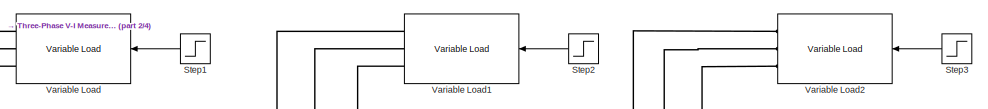
[diagram: root canvas - part 1/4, top center region]
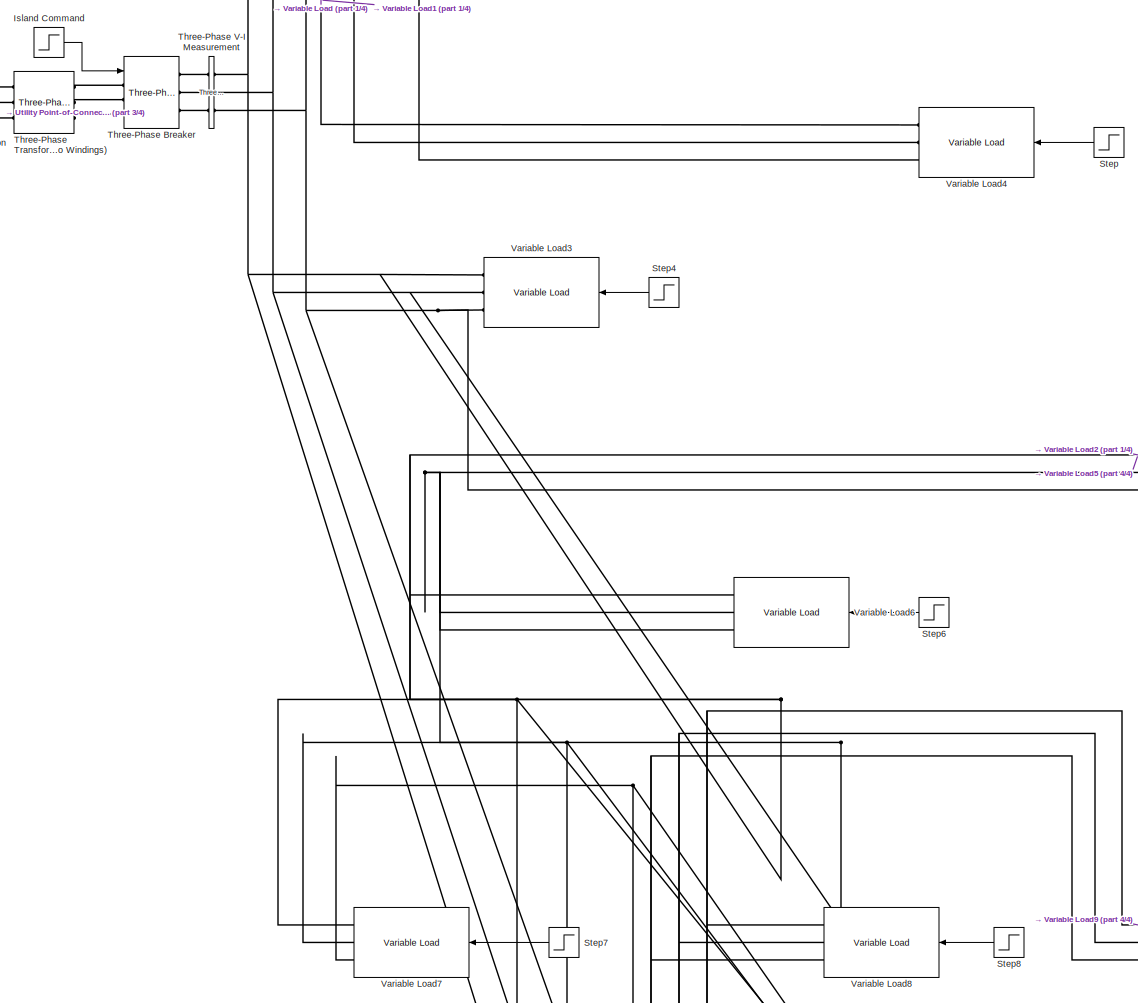
[diagram: root canvas - part 2/4, central region]
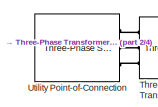
[diagram: root canvas - part 3/4, top left region]
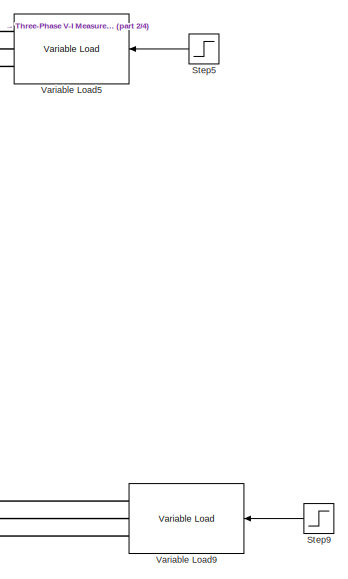
[diagram: root canvas - part 4/4, middle right region]
MODEL slx_3133c8d9baa0
KIND model
CONFIG AbsTol = auto
CONFIG EnableMultiTasking = off
CONFIG FixedStep = auto
CONFIG MaxStep = auto
CONFIG MinStep = auto
CONFIG RelTol = 1e-3
CONFIG SampleTimeConstraint = Unconstrained
CONFIG Solver = VariableStepAuto
CONFIG SolverName = VariableStepAuto
CONFIG StartTime = 0.0
CONFIG StopTime = 10.0
BLOCK [Step] Island Command
  After = 0
  Before = 1
  NameLocation = top
  SampleTime = 0
  Time = 15
BLOCK [Step] Step
  NameLocation = top
  SampleTime = 0
BLOCK [Step] Step1
  NameLocation = top
  SampleTime = 0
BLOCK [Step] Step2
  NameLocation = top
  SampleTime = 0
BLOCK [Step] Step3
  NameLocation = top
  SampleTime = 0
BLOCK [Step] Step4
  NameLocation = top
  SampleTime = 0
BLOCK [Step] Step5
  NameLocation = top
  SampleTime = 0
BLOCK [Step] Step6
  NameLocation = top
  SampleTime = 0
BLOCK [Step] Step7
  NameLocation = top
  SampleTime = 0
BLOCK [Step] Step8
  NameLocation = top
  SampleTime = 0
BLOCK [Step] Step9
  NameLocation = top
  SampleTime = 0
BLOCK [Reference] Three-Phase Breaker  REF=powerlib/Elements/Three-Phase Breaker
  Ports = [1, 0, 0, 0, 0, 3, 3]
  SourceBlock = powerlib/Elements/Three-Phase Breaker
  SourceProductBaseCode = PS
  SourceType = Three-Phase Breaker
BLOCK [Reference] Three-Phase Transformer (Two Windings)  REF=powerlib/Elements/Three-Phase
Transformer
(Two Windings)
  Ports = [0, 0, 0, 0, 0, 3, 3]
  SourceBlock = powerlib/Elements/Three-Phase\nTransformer\n(Two Windings)
  SourceProductBaseCode = PS
  SourceType = Three-Phase Transformer (Two Windings)
BLOCK [Reference] Three-Phase V-I Measurement  REF=powerlib/Measurements/Three-Phase
V-I Measurement
  Ports = [0, 0, 0, 0, 0, 3, 3]
  SourceBlock = powerlib/Measurements/Three-Phase\nV-I Measurement
  SourceProductBaseCode = PS
  SourceType = Three-Phase VI Measurement
BLOCK [Reference] Utility Point-of-Connection  REF=powerlib/Electrical
Sources/Three-Phase Source
  Ports = [0, 0, 0, 0, 0, 0, 3]
  SourceBlock = powerlib/Electrical\nSources/Three-Phase Source
  SourceProductBaseCode = PS
  SourceType = Three-Phase Source
BLOCK [Reference] Variable Load  REF=exampleMicrogridLibrary/Variable Load
  Ports = [1, 0, 0, 0, 0, 0, 3]
  SourceBlock = exampleMicrogridLibrary/Variable Load
  SourceType = Variable Load (PQ Model)
BLOCK [Reference] Variable Load1  REF=exampleMicrogridLibrary/Variable Load
  Ports = [1, 0, 0, 0, 0, 0, 3]
  SourceBlock = exampleMicrogridLibrary/Variable Load
  SourceType = Variable Load (PQ Model)
BLOCK [Reference] Variable Load2  REF=exampleMicrogridLibrary/Variable Load
  Ports = [1, 0, 0, 0, 0, 0, 3]
  SourceBlock = exampleMicrogridLibrary/Variable Load
  SourceType = Variable Load (PQ Model)
BLOCK [Reference] Variable Load3  REF=exampleMicrogridLibrary/Variable Load
  Ports = [1, 0, 0, 0, 0, 0, 3]
  SourceBlock = exampleMicrogridLibrary/Variable Load
  SourceType = Variable Load (PQ Model)
BLOCK [Reference] Variable Load4  REF=exampleMicrogridLibrary/Variable Load
  Ports = [1, 0, 0, 0, 0, 0, 3]
  SourceBlock = exampleMicrogridLibrary/Variable Load
  SourceType = Variable Load (PQ Model)
BLOCK [Reference] Variable Load5  REF=exampleMicrogridLibrary/Variable Load
  Ports = [1, 0, 0, 0, 0, 0, 3]
  SourceBlock = exampleMicrogridLibrary/Variable Load
  SourceType = Variable Load (PQ Model)
BLOCK [Reference] Variable Load6  REF=exampleMicrogridLibrary/Variable Load
  Ports = [1, 0, 0, 0, 0, 0, 3]
  SourceBlock = exampleMicrogridLibrary/Variable Load
  SourceType = Variable Load (PQ Model)
BLOCK [Reference] Variable Load7  REF=exampleMicrogridLibrary/Variable Load
  Ports = [1, 0, 0, 0, 0, 0, 3]
  SourceBlock = exampleMicrogridLibrary/Variable Load
  SourceType = Variable Load (PQ Model)
BLOCK [Reference] Variable Load8  REF=exampleMicrogridLibrary/Variable Load
  Ports = [1, 0, 0, 0, 0, 0, 3]
  SourceBlock = exampleMicrogridLibrary/Variable Load
  SourceType = Variable Load (PQ Model)
BLOCK [Reference] Variable Load9  REF=exampleMicrogridLibrary/Variable Load
  Ports = [1, 0, 0, 0, 0, 0, 3]
  SourceBlock = exampleMicrogridLibrary/Variable Load
  SourceType = Variable Load (PQ Model)
LINE Island Command:1 -> Three-Phase Breaker:1
LINE Step1:1 -> Variable Load:1
LINE Step2:1 -> Variable Load1:1
LINE Step3:1 -> Variable Load2:1
LINE Step4:1 -> Variable Load3:1
LINE Step5:1 -> Variable Load5:1
LINE Step6:1 -> Variable Load6:1
LINE Step7:1 -> Variable Load7:1
LINE Step8:1 -> Variable Load8:1
LINE Step9:1 -> Variable Load9:1
LINE Step:1 -> Variable Load4:1
PLINE Three-Phase Breaker:LConn1 -- Three-Phase Transformer (Two Windings):RConn1
PLINE Three-Phase Breaker:LConn2 -- Three-Phase Transformer (Two Windings):RConn2
PLINE Three-Phase Breaker:LConn3 -- Three-Phase Transformer (Two Windings):RConn3
PLINE Three-Phase Breaker:RConn1 -- Three-Phase V-I Measurement:LConn1
PLINE Three-Phase Breaker:RConn2 -- Three-Phase V-I Measurement:LConn2
PLINE Three-Phase Breaker:RConn3 -- Three-Phase V-I Measurement:LConn3
PLINE Three-Phase Transformer (Two Windings):LConn1 -- Utility Point-of-Connection:RConn1
PLINE Three-Phase Transformer (Two Windings):LConn2 -- Utility Point-of-Connection:RConn2
PLINE Three-Phase Transformer (Two Windings):LConn3 -- Utility Point-of-Connection:RConn3
PNET net1: Three-Phase V-I Measurement:RConn1 -- Variable Load1:RConn1 -- Variable Load2:RConn1 -- Variable Load3:RConn1 -- Variable Load4:RConn1 -- Variable Load5:RConn1 -- Variable Load6:RConn1 -- Variable Load7:RConn1 -- Variable Load8:RConn1 -- Variable Load9:RConn1 -- Variable Load:RConn1
PNET net2: Three-Phase V-I Measurement:RConn2 -- Variable Load1:RConn2 -- Variable Load2:RConn2 -- Variable Load3:RConn2 -- Variable Load4:RConn2 -- Variable Load5:RConn2 -- Variable Load6:RConn2 -- Variable Load6:RConn3 -- Variable Load7:RConn2 -- Variable Load8:RConn2 -- Variable Load9:RConn2 -- Variable Load:RConn2
PNET net3: Three-Phase V-I Measurement:RConn3 -- Variable Load1:RConn3 -- Variable Load2:RConn3 -- Variable Load3:RConn3 -- Variable Load4:RConn3 -- Variable Load5:RConn3 -- Variable Load7:RConn3 -- Variable Load8:RConn3 -- Variable Load9:RConn3 -- Variable Load:RConn3
note: PNET lines group multi-terminal physical nets as a canonical sorted terminal list (undirected conserving connections); 2-terminal nets keep the pairwise PLINE form
